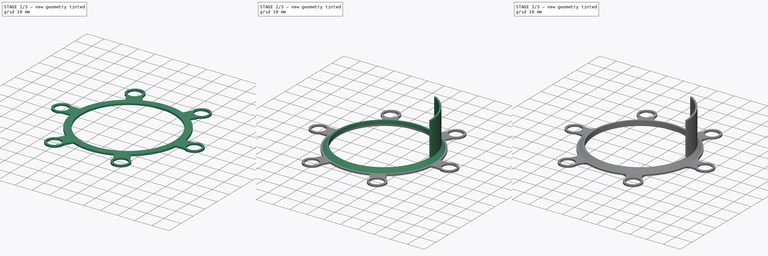
[diagram: build sequence overview — one tinted view per stage of 3, left to right]
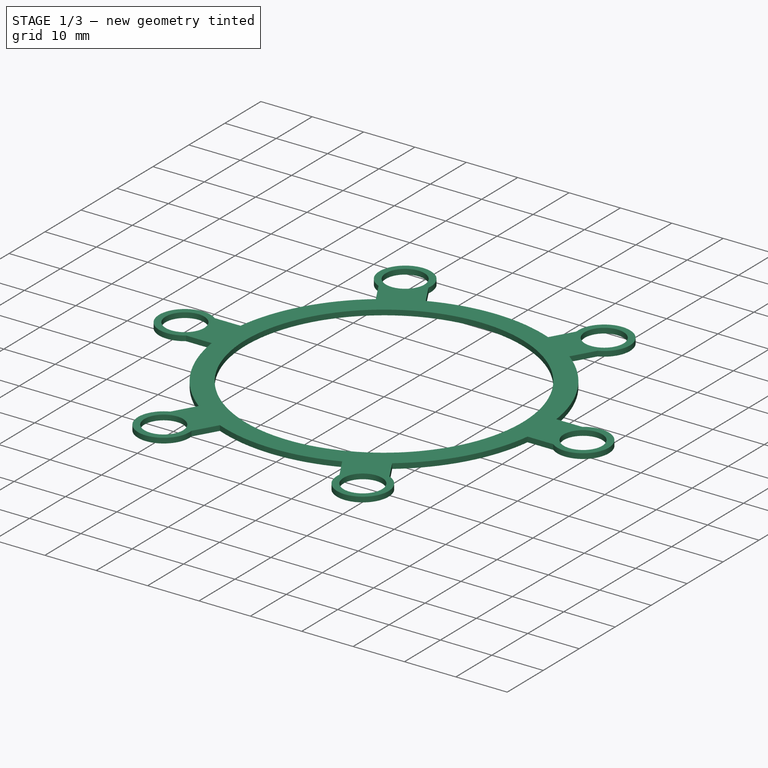
[diagram: stage 1 of 3 — iso view after this stage's code; geometry added in this stage tinted green]
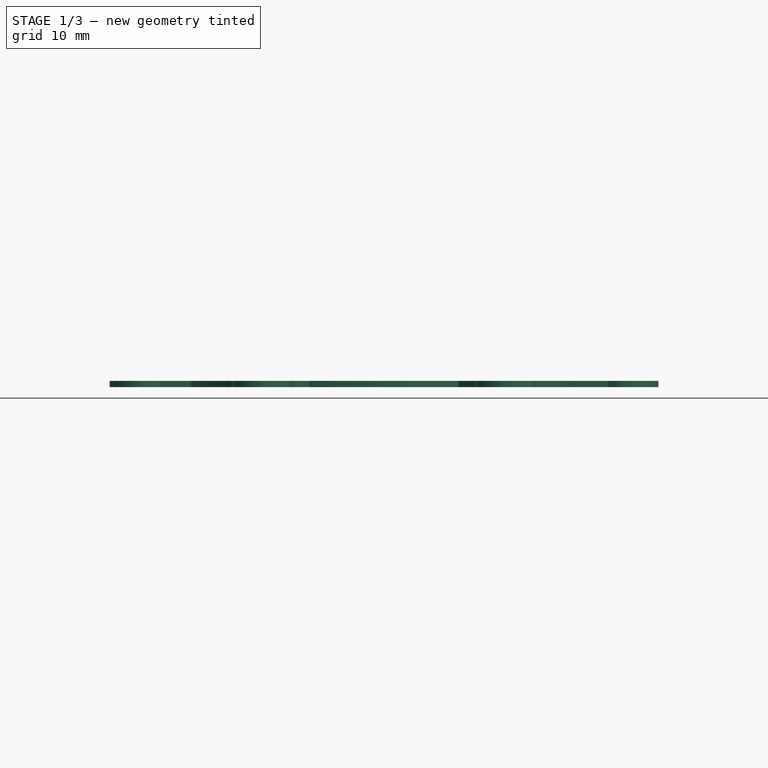
[diagram: stage 1 of 3 — front view after this stage's code; geometry added in this stage tinted green]
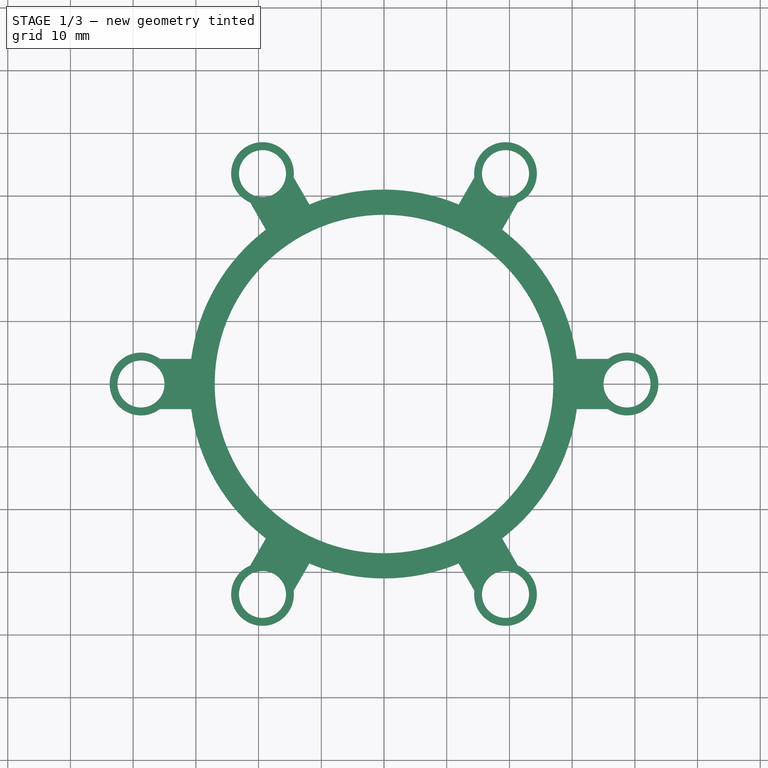
[diagram: stage 1 of 3 — top view after this stage's code; geometry added in this stage tinted green]
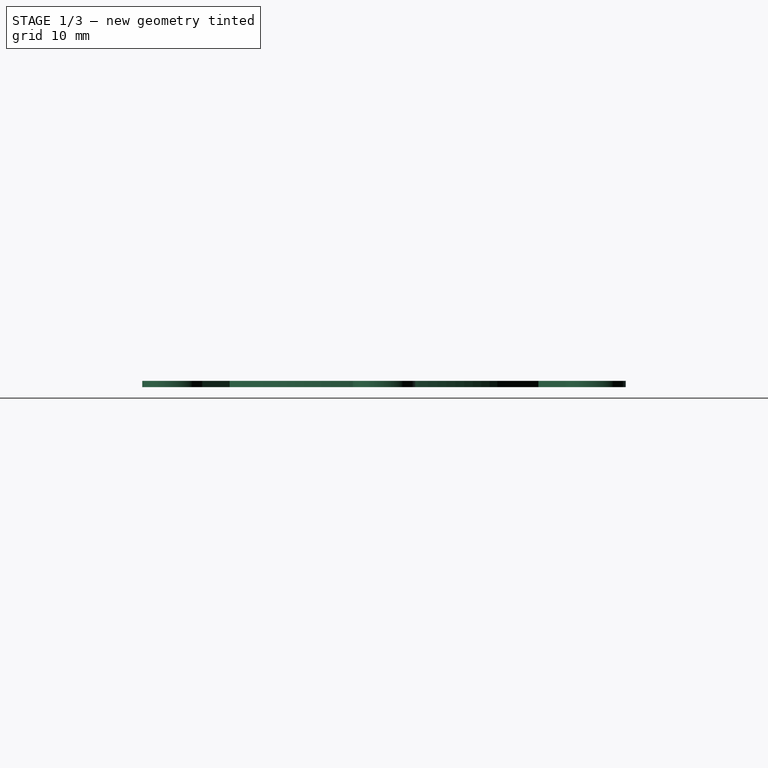
[diagram: stage 1 of 3 — right view after this stage's code; geometry added in this stage tinted green]
FCSTD DOCUMENT  (FreeCAD 0.20R29603 (Git))
Label: HyperdriveLogicCircle
License: All rights reserved
LicenseURL: http://en.wikipedia.org/wiki/All_rights_reserved
objects: Sketcher::SketchObject×4, PartDesign::Pad×3, PartDesign::Fillet×2, PartDesign::PolarPattern×1, PartDesign::Chamfer×1, PartDesign::Body×1
note: 18 computed .brp shape members not serialized (recipe doc carries the construction recipe); baked Part::Feature solids carry a one-line shape summary decoded from their .brp

FEATURE [Sketcher::SketchObject] Sketch001
  FullyConstrained = true
  MapMode = 5
  Support = -> [XY_Plane001]
  sketch-geometry (11):
    g0: ArcOfCircle CenterX=0 CenterY=0 CenterZ=0 NormalX=0 NormalY=0 NormalZ=1 AngleXU=0 Radius=27 StartAngle=5.75959 EndAngle=6.80678
    g1: ArcOfCircle CenterX=0 CenterY=0 CenterZ=0 NormalX=0 NormalY=0 NormalZ=1 AngleXU=0 Radius=31 StartAngle=0.129393 EndAngle=0.523599
    g2: ArcOfCircle CenterX=38.75 CenterY=0 CenterZ=0 NormalX=0 NormalY=0 NormalZ=1 AngleXU=0 Radius=5 StartAngle=4.06889 EndAngle=8.49748
    g3: Circle CenterX=38.75 CenterY=0 CenterZ=0 NormalX=0 NormalY=0 NormalZ=1 AngleXU=0 Radius=3.75
    g4: LineSegment StartX=35.75 StartY=4 StartZ=0 EndX=30.7409 EndY=4 EndZ=0
    g5: LineSegment StartX=35.75 StartY=-4 StartZ=0 EndX=30.7409 EndY=-4 EndZ=0
    g6: LineSegment StartX=0 StartY=0 StartZ=0 EndX=26.8468 EndY=15.5 EndZ=0
    g7: LineSegment StartX=0 StartY=0 StartZ=0 EndX=26.8468 EndY=-15.5 EndZ=0
    g8: ArcOfCircle CenterX=0 CenterY=0 CenterZ=0 NormalX=0 NormalY=0 NormalZ=1 AngleXU=0 Radius=31 StartAngle=5.75959 EndAngle=6.15379
    g9: LineSegment StartX=26.8468 StartY=15.5 StartZ=0 EndX=23.3827 EndY=13.5 EndZ=0
    g10: LineSegment StartX=23.3827 StartY=-13.5 StartZ=0 EndX=26.8468 EndY=-15.5 EndZ=0
  constraints (31):
    c: Coincident(g0,g-1)
    c: Coincident(g1,g0)
    c: Diameter(g1) = 62
    c: Diameter(g0) = 54
    c: PointOnObject(g2,g-1)
    c: DistanceX(g0,g2) = 38.75
    c: Coincident(g3,g2)
    c: Diameter(g3) = 7.5
    c: Horizontal(g4)
    c: Horizontal(g5)
    c: Coincident(g2,g4)
    c: Coincident(g4,g1)
    c: Coincident(g5,g8)
    c: Coincident(g2,g5)
    c: Radius(g2) = 5
    c: DistanceY(g1) = 4
    c: DistanceY(g8) = -4
    c: Coincident(g6,g0)
    c: Coincident(g7,g0)
    c: Angle(g6) = 0.523599
    c: Angle(g7) = -0.523599
    c: PointOnObject(g0,g6)
    c: PointOnObject(g0,g7)
    c: Equal(g1,g8)
    c: Coincident(g1,g6)
    c: Coincident(g8,g7)
    c: Coincident(g1,g8)
    c: Coincident(g9,g1)
    c: Coincident(g9,g0)
    c: Coincident(g10,g0)
    c: Coincident(g10,g8)
FEATURE [PartDesign::Pad] Pad001
  Direction = (0,0,1)
  Length = 1
  Length2 = 10
  Profile = -> Sketch001
  ReferenceAxis = -> Sketch001 [N_Axis]
  Type = 0
FEATURE [PartDesign::PolarPattern] PolarPattern
  Angle = 360
  Axis = -> Sketch001 [N_Axis]
  BaseFeature = -> Pad001
  Occurrences = 6
  Originals = -> [Pad001]
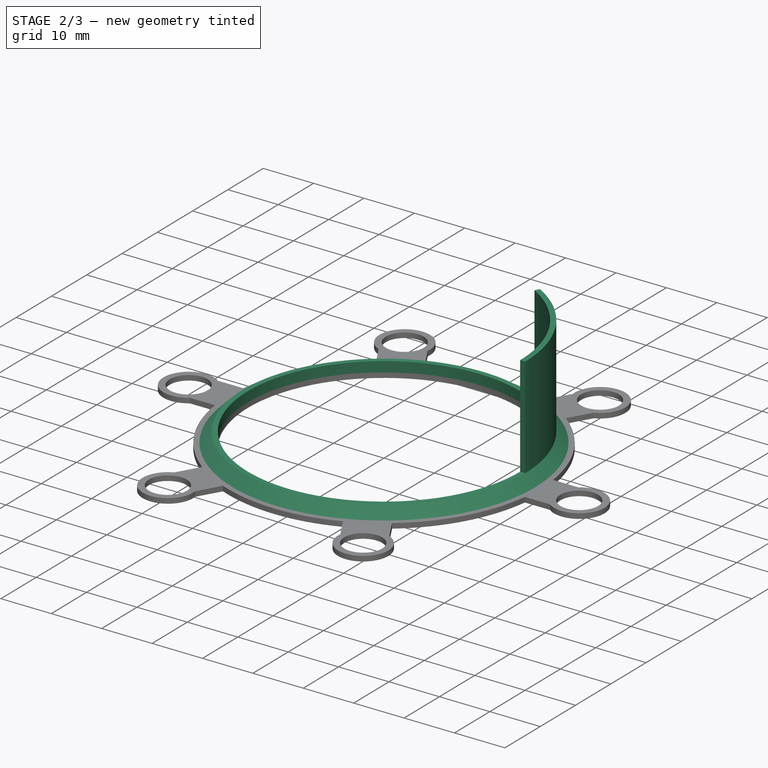
[diagram: stage 2 of 3 — iso view after this stage's code; geometry added in this stage tinted green]
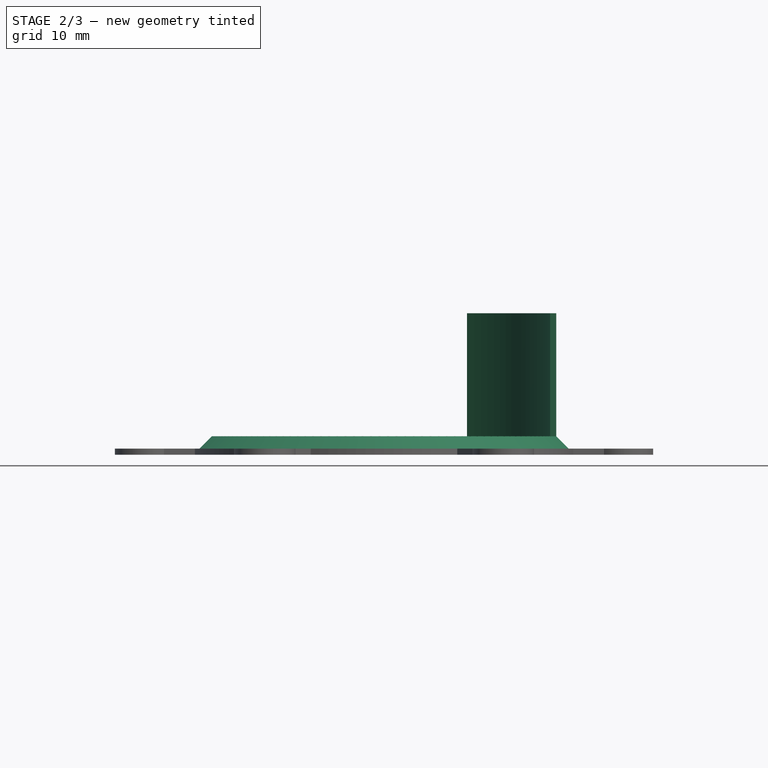
[diagram: stage 2 of 3 — front view after this stage's code; geometry added in this stage tinted green]
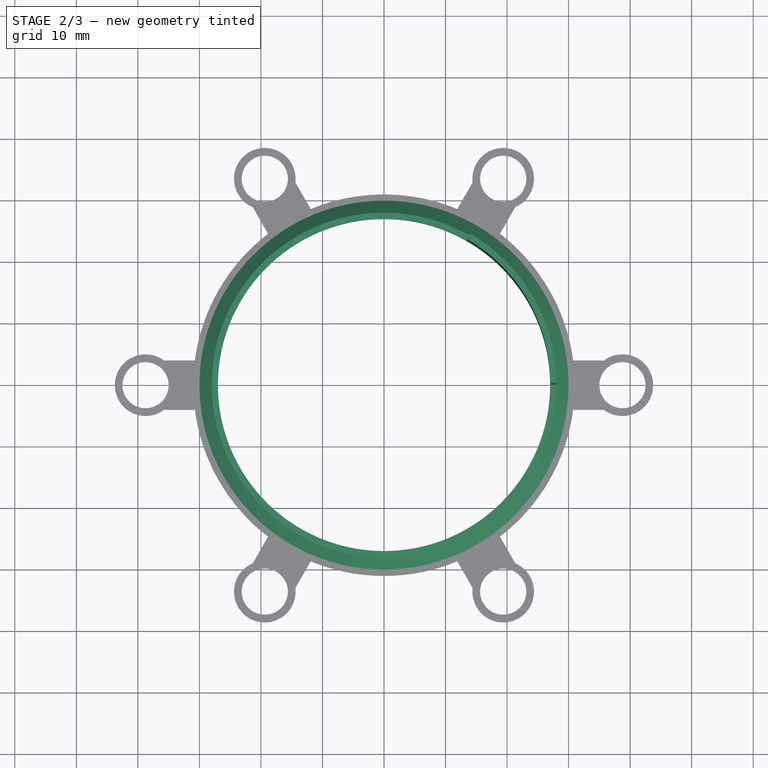
[diagram: stage 2 of 3 — top view after this stage's code; geometry added in this stage tinted green]
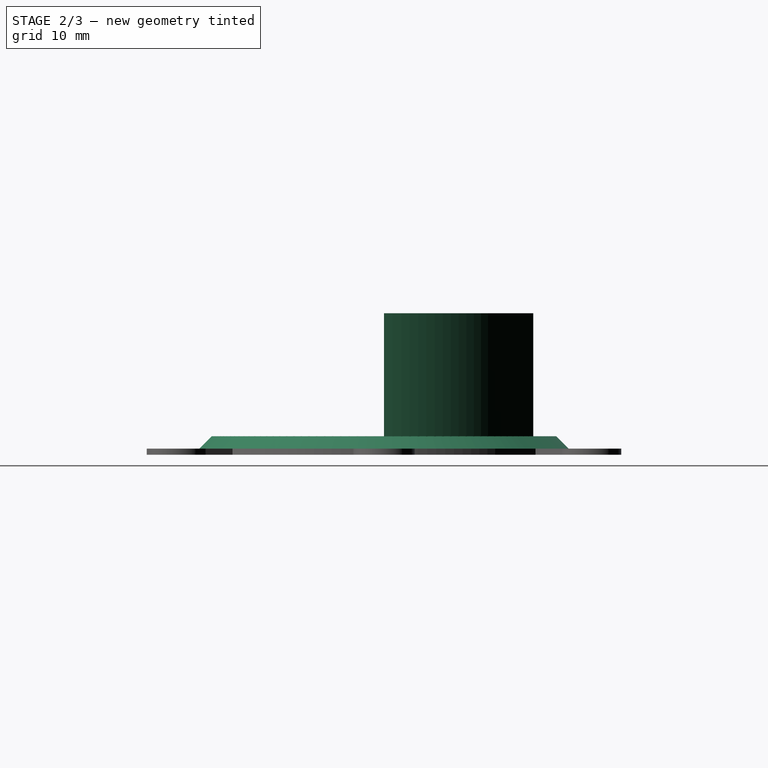
[diagram: stage 2 of 3 — right view after this stage's code; geometry added in this stage tinted green]
FEATURE [Sketcher::SketchObject] Sketch
  AttachmentOffset = pos=(0,0,1) rot=(0,0,1;0rad)
  FullyConstrained = true
  MapMode = 5
  Placement = pos=(0,0,1) rot=(0,0,1;0rad)
  Support = -> [XY_Plane001]
  sketch-geometry (2):
    g0: Circle CenterX=0 CenterY=0 CenterZ=0 NormalX=0 NormalY=0 NormalZ=1 AngleXU=0 Radius=27
    g1: Circle CenterX=0 CenterY=0 CenterZ=0 NormalX=0 NormalY=0 NormalZ=1 AngleXU=0 Radius=28
  constraints (4):
    c: Coincident(g0,g-1)
    c: Coincident(g1,g0)
    c: Diameter(g1) = 56
    c: Diameter(g0) = 54
FEATURE [PartDesign::Pad] Pad
  BaseFeature = -> PolarPattern
  Direction = (0,0,1)
  Length = 2
  Length2 = 10
  Profile = -> Sketch
  ReferenceAxis = -> Sketch [N_Axis]
  Type = 0
FEATURE [PartDesign::Chamfer] Chamfer
  Angle = 45
  Base = -> Pad [Edge97]
  BaseFeature = -> Pad
  ChamferType = 0
  FlipDirection = false
  Size = 1.99
  Size2 = 1
  SupportTransform = false
  UseAllEdges = false
FEATURE [Sketcher::SketchObject] Sketch002
  FullyConstrained = true
  MapMode = 5
  Placement = pos=(0,0,3) rot=(0,0,1;0rad)
  Support = -> [Chamfer]
  sketch-geometry (6):
    g0: ArcOfCircle CenterX=0 CenterY=0 CenterZ=0 NormalX=0 NormalY=0 NormalZ=1 AngleXU=0 Radius=27 StartAngle=1.51e-14 EndAngle=1.0472
    g1: ArcOfCircle CenterX=0 CenterY=0 CenterZ=0 NormalX=0 NormalY=0 NormalZ=1 AngleXU=0 Radius=28 StartAngle=1.51e-14 EndAngle=1.0472
    g2: LineSegment StartX=0 StartY=0 StartZ=0 EndX=14 EndY=24.2487 EndZ=0
    g3: LineSegment StartX=0 StartY=0 StartZ=0 EndX=28 EndY=4.109e-13 EndZ=0
    g4: LineSegment StartX=13.5 StartY=23.3827 StartZ=0 EndX=14 EndY=24.2487 EndZ=0
    g5: LineSegment StartX=27 StartY=4.077e-13 StartZ=0 EndX=28 EndY=4.109e-13 EndZ=0
  constraints (16):
    c: Coincident(g0,g-1)
    c: Coincident(g1,g0)
    c: Diameter(g1) = 56
    c: Diameter(g0) = 54
    c: Coincident(g2,g0)
    c: Coincident(g3,g0)
    c: Angle(g2) = 1.0472
    c: Angle(g3) = 0
    c: PointOnObject(g0,g2)
    c: PointOnObject(g0,g3)
    c: Coincident(g1,g2)
    c: Coincident(g1,g3)
    c: Coincident(g4,g0)
    c: Coincident(g4,g1)
    c: Coincident(g5,g0)
    c: Coincident(g5,g1)
FEATURE [PartDesign::Pad] Pad002
  BaseFeature = -> Chamfer
  Direction = (0,0,1)
  Length = 20
  Length2 = 10
  Profile = -> Sketch002
  ReferenceAxis = -> Sketch002 [N_Axis]
  Type = 0
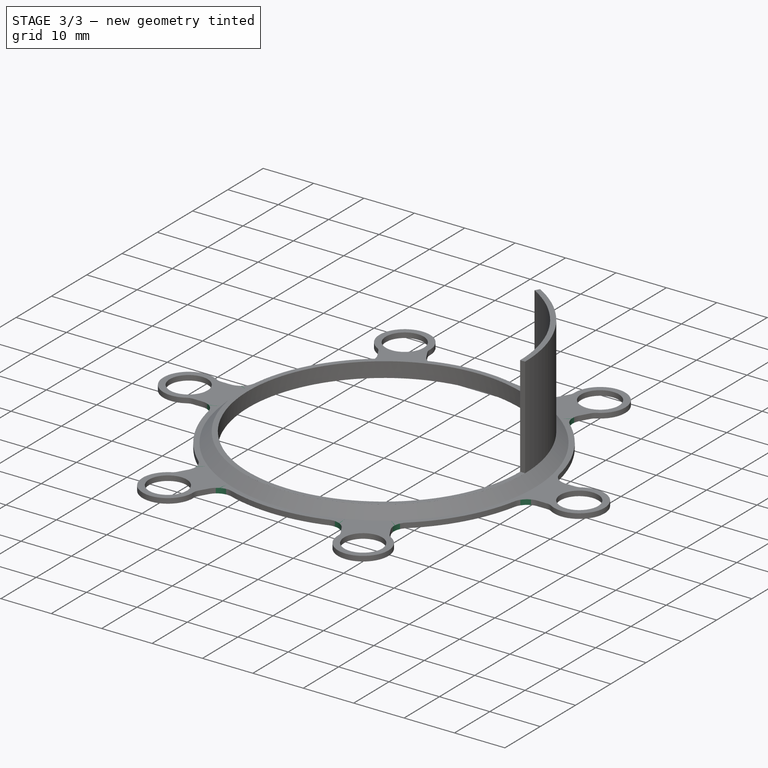
[diagram: stage 3 of 3 — iso view after this stage's code; geometry added in this stage tinted green]
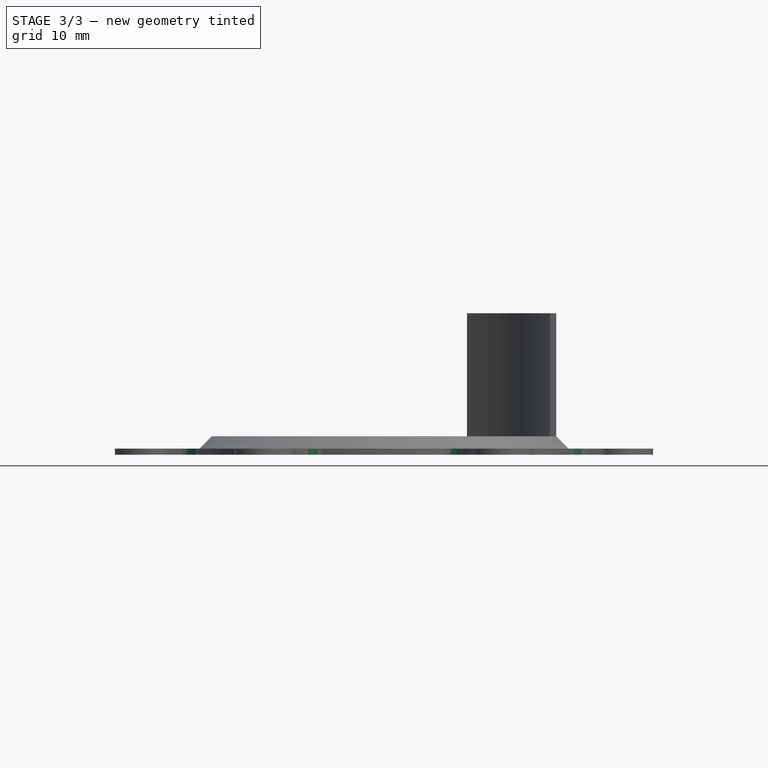
[diagram: stage 3 of 3 — front view after this stage's code; geometry added in this stage tinted green]
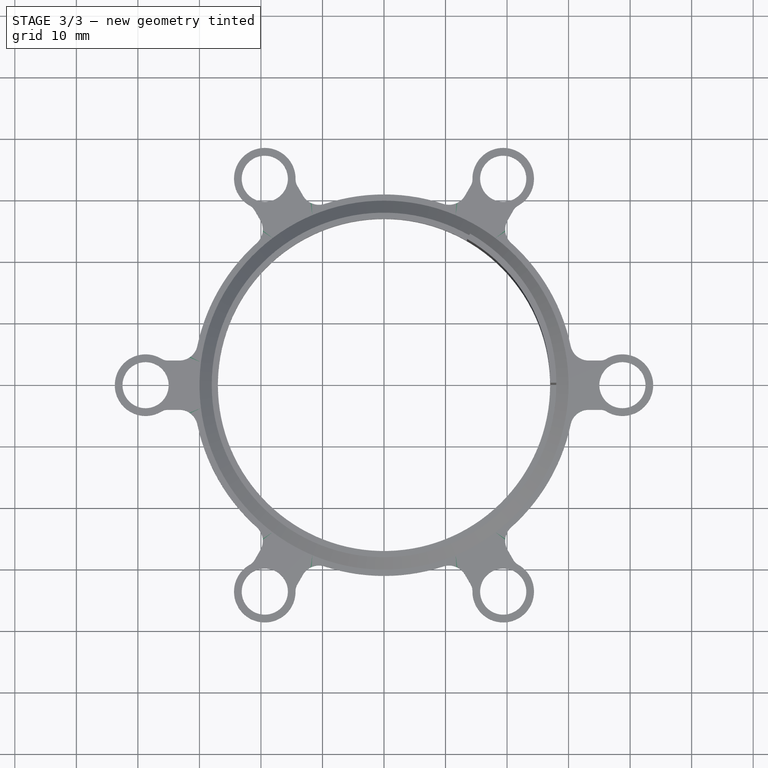
[diagram: stage 3 of 3 — top view after this stage's code; geometry added in this stage tinted green]
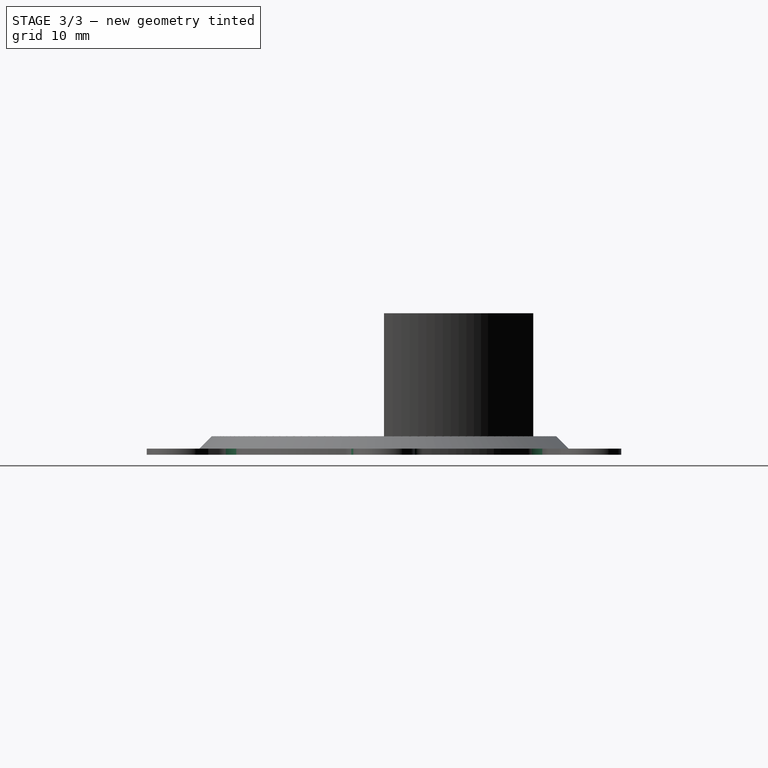
[diagram: stage 3 of 3 — right view after this stage's code; geometry added in this stage tinted green]
FEATURE [Sketcher::SketchObject] Sketch003
  FullyConstrained = true
  MapMode = 5
  Placement = pos=(0,0,0) rot=(0.57735,0.57735,0.57735;2.0944rad)
  Support = -> [YZ_Plane001]
FEATURE [PartDesign::Fillet] Fillet
  Base = -> Pad002 [Edge147,Edge135,Edge109,Edge88,Edge37,Edge27,Edge62,Edge93,Edge140,Edge151,Edge113,Edge58]
  BaseFeature = -> Pad002
  Radius = 2
  SupportTransform = false
  UseAllEdges = false
FEATURE [PartDesign::Fillet] Fillet001
  Base = -> Fillet [Edge15,Edge62,Edge58,Edge38,Edge105,Edge172,Edge194,Edge190,Edge132,Edge128,Edge94,Edge163]
  BaseFeature = -> Fillet
  Radius = 3
  SupportTransform = false
  UseAllEdges = false
FEATURE [PartDesign::Body] Body001  label="Holders"
  Group = -> [Sketch001,Pad001,PolarPattern,Sketch,Pad,Chamfer,Sketch002,Pad002,Sketch003,Fillet,Fillet001]
  Origin = -> Origin001
  Tip = -> Fillet001
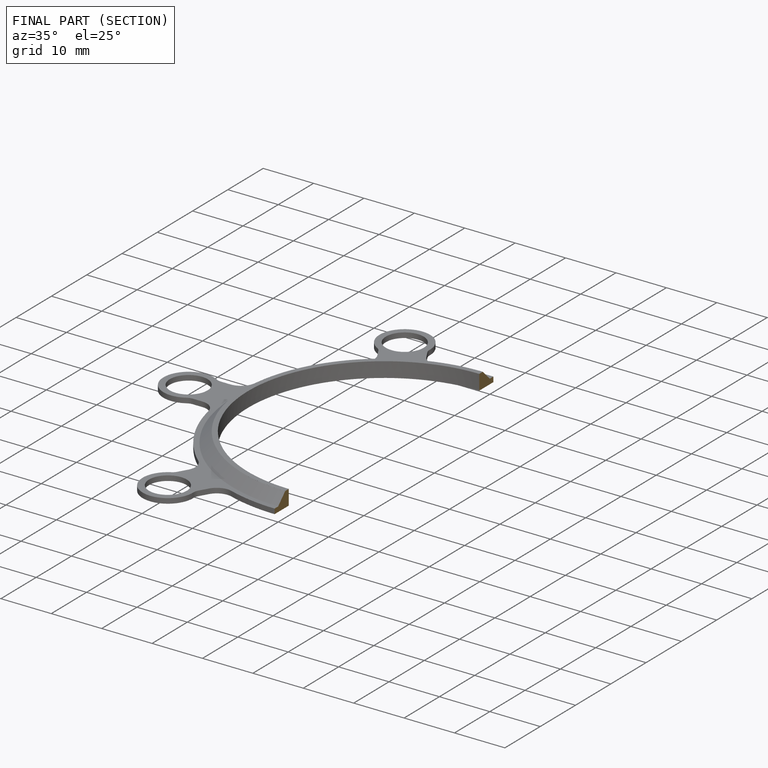
[diagram: finished part — half-section view (interior)]
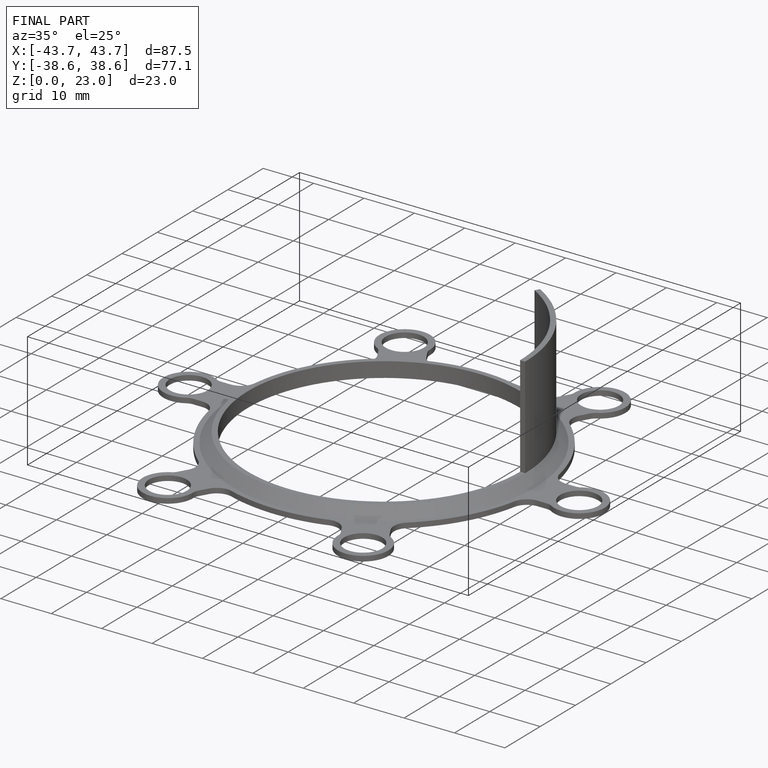
[diagram: finished part — iso view with bounding-box wireframe]
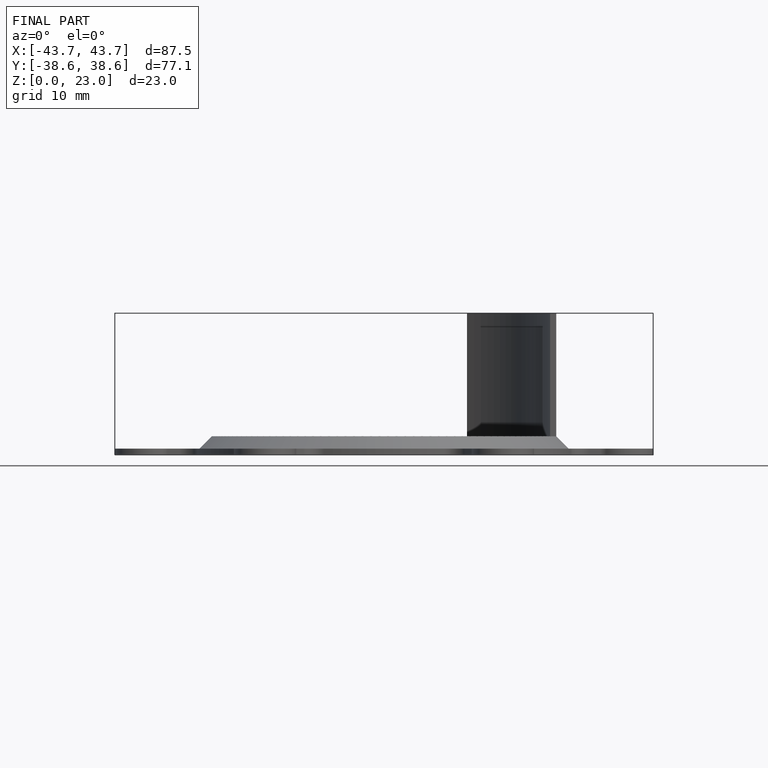
[diagram: finished part — front view with bounding-box wireframe]
